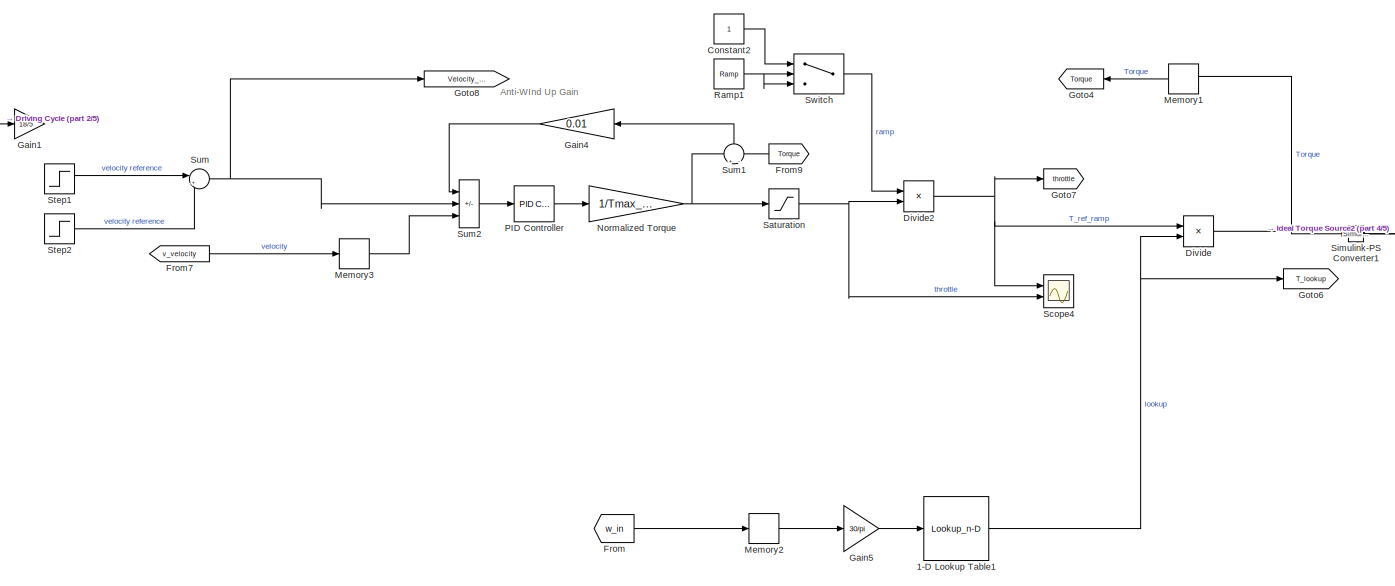
[diagram: root canvas - part 1/5, top left region]
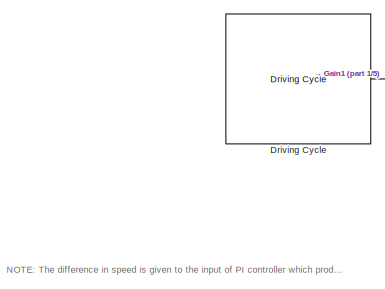
[diagram: root canvas - part 2/5, top left region]
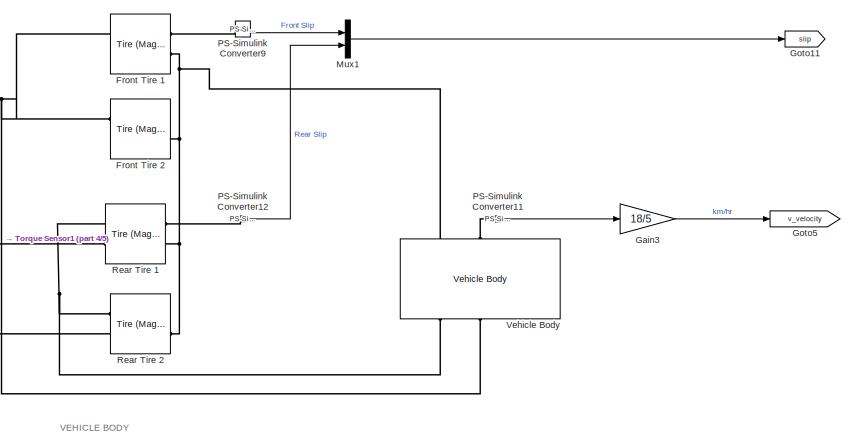
[diagram: root canvas - part 3/5, middle right region]
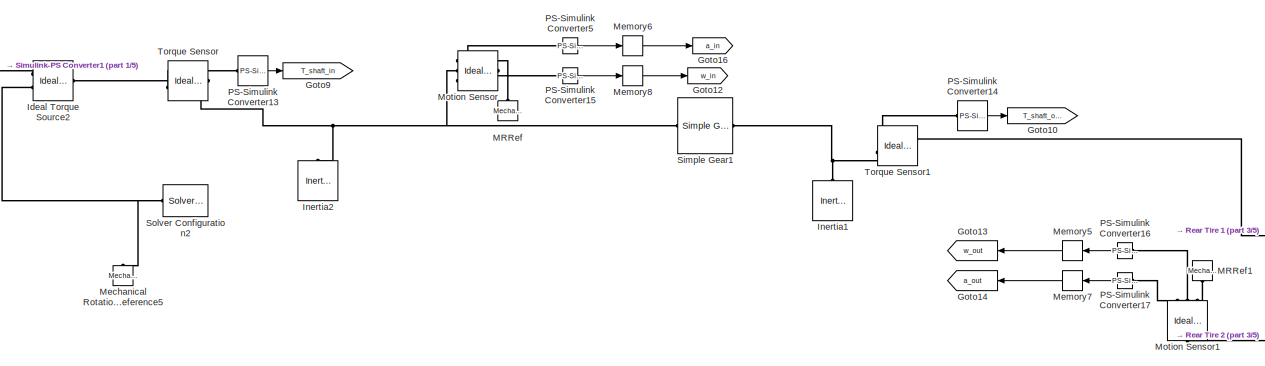
[diagram: root canvas - part 4/5, top center region]
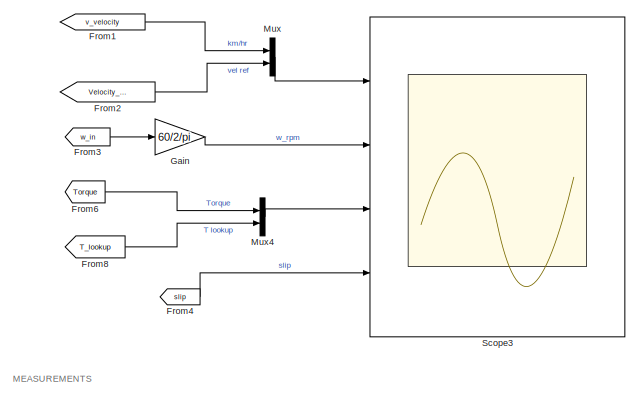
[diagram: root canvas - part 5/5, bottom center region]
MODEL slx_215099330c0b
KIND model
CONFIG AbsTol = auto
CONFIG EnableMultiTasking = off
CONFIG FixedStep = auto
CONFIG MaxStep = auto
CONFIG MinStep = auto
CONFIG RelTol = 1e-3
CONFIG SampleTimeConstraint = Unconstrained
CONFIG SolverName = VariableStepAuto
CONFIG StartTime = 0.0
CONFIG StopTime = 30
BLOCK [Reference]  Rear Tire 1  REF=sdl_lib/Tires & Vehicles/Tire (Magic Formula)
  Ports = [0, 0, 0, 0, 0, 2, 2]
  SourceBlock = sdl_lib/Tires & Vehicles/Tire (Magic Formula)
  SourceProductBaseCode = LD
  SourceType = Tire (Magic Formula)
BLOCK [Saturate]  Saturation
  LowerLimit = -1
  UpperLimit = 1
BLOCK [Lookup_n-D] 1-D Lookup Table1
  BreakpointsForDimension1 = w
  InputPortMap = u0
  InternalRulePriority = Speed
  NumberOfTableDimensions = 1
  Ports = [1, 1]
  RndMeth = Simplest
  Table = T
BLOCK [Constant] Constant2
BLOCK [Product] Divide
  Inputs = **
  Ports = [2, 1]
BLOCK [Product] Divide2
  Inputs = **
  Ports = [2, 1]
BLOCK [Reference] Driving Cycle  REF=drivingcycle_lib/Driving Cycle
  Ports = [0, 3]
  SourceBlock = drivingcycle_lib/Driving Cycle
  SourceProductName = Driving Cycle Blockset
  SourceType = Driving Cycle
BLOCK [From] From
  GotoTag = w_in
BLOCK [From] From1
  GotoTag = v_velocity
  TagVisibility = global
BLOCK [From] From2
  GotoTag = Velocity_ref
  NameLocation = top
  TagVisibility = global
BLOCK [From] From3
  GotoTag = w_in
BLOCK [From] From4
  GotoTag = slip
  TagVisibility = global
BLOCK [From] From6
  GotoTag = Torque
  TagVisibility = global
BLOCK [From] From7
  GotoTag = v_velocity
  TagVisibility = global
BLOCK [From] From8
  GotoTag = T_lookup
BLOCK [From] From9
  GotoTag = Torque
  NameLocation = top
  TagVisibility = global
BLOCK [Reference] Front Tire 1  REF=sdl_lib/Tires & Vehicles/Tire (Magic Formula)
  Ports = [0, 0, 0, 0, 0, 2, 2]
  SourceBlock = sdl_lib/Tires & Vehicles/Tire (Magic Formula)
  SourceProductBaseCode = LD
  SourceType = Tire (Magic Formula)
BLOCK [Reference] Front Tire 2  REF=sdl_lib/Tires & Vehicles/Tire (Magic Formula)
  Ports = [0, 0, 0, 0, 0, 2, 2]
  SourceBlock = sdl_lib/Tires & Vehicles/Tire (Magic Formula)
  SourceProductBaseCode = LD
  SourceType = Tire (Magic Formula)
BLOCK [Gain] Gain
  Gain = 60/2/pi
BLOCK [Gain] Gain1
  Gain = 18/5
BLOCK [Gain] Gain3
  Gain = 18/5
BLOCK [Gain] Gain4
  Gain = 0.01
  NameLocation = top
BLOCK [Gain] Gain5
  Gain = 30/pi
BLOCK [Goto] Goto10
  GotoTag = T_shaft_out
  TagVisibility = global
BLOCK [Goto] Goto11
  GotoTag = slip
  TagVisibility = global
BLOCK [Goto] Goto12
  GotoTag = w_in
BLOCK [Goto] Goto13
  GotoTag = w_out
  NameLocation = top
BLOCK [Goto] Goto14
  GotoTag = a_out
  NameLocation = top
BLOCK [Goto] Goto16
  GotoTag = a_in
BLOCK [Goto] Goto4
  GotoTag = Torque
  NameLocation = top
  TagVisibility = global
BLOCK [Goto] Goto5
  GotoTag = v_velocity
  TagVisibility = global
BLOCK [Goto] Goto6
  GotoTag = T_lookup
BLOCK [Goto] Goto7
  GotoTag = throttle
  TagVisibility = global
BLOCK [Goto] Goto8
  GotoTag = Velocity_ref
  TagVisibility = global
BLOCK [Goto] Goto9
  GotoTag = T_shaft_in
  TagVisibility = global
BLOCK [Reference] Ideal Torque Source2  REF=fl_lib/Mechanical/Mechanical Sources/Ideal Torque Source
  Ports = [0, 0, 0, 0, 0, 1, 2]
  SourceBlock = fl_lib/Mechanical/Mechanical Sources/Ideal Torque Source
  SourceProductBaseCode = SS
  SourceType = Ideal Torque Source
BLOCK [Reference] Inertia1  REF=fl_lib/Mechanical/Rotational Elements/Inertia
  NameLocation = right
  Ports = [0, 0, 0, 0, 0, 1]
  SourceBlock = fl_lib/Mechanical/Rotational Elements/Inertia
  SourceProductBaseCode = SS
  SourceType = Inertia
BLOCK [Reference] Inertia2  REF=fl_lib/Mechanical/Rotational Elements/Inertia
  NameLocation = right
  Ports = [0, 0, 0, 0, 0, 1]
  SourceBlock = fl_lib/Mechanical/Rotational Elements/Inertia
  SourceProductBaseCode = SS
  SourceType = Inertia
BLOCK [Reference] MRRef  REF=fl_lib/Mechanical/Rotational Elements/Mechanical
Rotational Reference
  NameLocation = left
  Ports = [0, 0, 0, 0, 0, 1]
  SourceBlock = fl_lib/Mechanical/Rotational Elements/Mechanical\nRotational Reference
  SourceProductName = Foundation Library
  SourceType = Mechanical\nRotational Reference
BLOCK [Reference] MRRef1  REF=fl_lib/Mechanical/Rotational Elements/Mechanical
Rotational Reference
  NameLocation = right
  Ports = [0, 0, 0, 0, 0, 1]
  SourceBlock = fl_lib/Mechanical/Rotational Elements/Mechanical\nRotational Reference
  SourceProductName = Foundation Library
  SourceType = Mechanical\nRotational Reference
BLOCK [Reference] Mechanical Rotational Reference5  REF=fl_lib/Mechanical/Rotational Elements/Mechanical
Rotational Reference
  NameLocation = right
  Ports = [0, 0, 0, 0, 0, 1]
  SourceBlock = fl_lib/Mechanical/Rotational Elements/Mechanical\nRotational Reference
  SourceProductBaseCode = SS
  SourceType = Mechanical\nRotational Reference
BLOCK [Memory] Memory1
  NameLocation = top
BLOCK [Memory] Memory2
BLOCK [Memory] Memory3
BLOCK [Memory] Memory5
  NameLocation = top
BLOCK [Memory] Memory6
BLOCK [Memory] Memory7
  NameLocation = top
BLOCK [Memory] Memory8
BLOCK [Reference] Motion Sensor  REF=fl_lib/Mechanical/Mechanical Sensors/Ideal Rotational
Motion Sensor
  NameLocation = top
  Ports = [0, 0, 0, 0, 0, 1, 3]
  SourceBlock = fl_lib/Mechanical/Mechanical Sensors/Ideal Rotational\nMotion Sensor
  SourceProductName = Foundation Library
  SourceType = Ideal Rotational\nMotion Sensor
BLOCK [Reference] Motion Sensor1  REF=fl_lib/Mechanical/Mechanical Sensors/Ideal Rotational
Motion Sensor
  NameLocation = left
  Ports = [0, 0, 0, 0, 0, 1, 3]
  SourceBlock = fl_lib/Mechanical/Mechanical Sensors/Ideal Rotational\nMotion Sensor
  SourceProductName = Foundation Library
  SourceType = Ideal Rotational\nMotion Sensor
BLOCK [Mux] Mux
  DisplayOption = bar
  Inputs = 2
  Ports = [2, 1]
BLOCK [Mux] Mux1
  DisplayOption = bar
  Inputs = 2
  Ports = [2, 1]
BLOCK [Mux] Mux4
  DisplayOption = bar
  Inputs = 2
  Ports = [2, 1]
BLOCK [Gain] Normalized Torque
  Gain = 1/Tmax_mach
BLOCK [Reference] PID Controller  REF=slpidlib/PID Controller
  Ports = [1, 1]
  SourceBlock = slpidlib/PID Controller
  SourceProductBaseCode = SL
  SourceType = PID 1dof
BLOCK [Reference] PS-Simulink Converter11  REF=nesl_utility/PS-Simulink
Converter
  Ports = [0, 1, 0, 0, 0, 1]
  SourceBlock = nesl_utility/PS-Simulink\nConverter
  SourceProductBaseCode = SS
  SourceType = PS-Simulink\nConverter
BLOCK [Reference] PS-Simulink Converter12  REF=nesl_utility/PS-Simulink
Converter
  Ports = [0, 1, 0, 0, 0, 1]
  SourceBlock = nesl_utility/PS-Simulink\nConverter
  SourceProductBaseCode = SS
  SourceType = PS-Simulink\nConverter
BLOCK [Reference] PS-Simulink Converter13  REF=nesl_utility/PS-Simulink
Converter
  Ports = [0, 1, 0, 0, 0, 1]
  SourceBlock = nesl_utility/PS-Simulink\nConverter
  SourceProductName = Utilities
  SourceType = PS-Simulink\nConverter
BLOCK [Reference] PS-Simulink Converter14  REF=nesl_utility/PS-Simulink
Converter
  Ports = [0, 1, 0, 0, 0, 1]
  SourceBlock = nesl_utility/PS-Simulink\nConverter
  SourceProductName = Utilities
  SourceType = PS-Simulink\nConverter
BLOCK [Reference] PS-Simulink Converter15  REF=nesl_utility/PS-Simulink
Converter
  Ports = [0, 1, 0, 0, 0, 1]
  SourceBlock = nesl_utility/PS-Simulink\nConverter
  SourceProductBaseCode = PW,SS
  SourceType = PS-Simulink\nConverter
BLOCK [Reference] PS-Simulink Converter16  REF=nesl_utility/PS-Simulink
Converter
  NameLocation = top
  Ports = [0, 1, 0, 0, 0, 1]
  SourceBlock = nesl_utility/PS-Simulink\nConverter
  SourceProductBaseCode = PW,SS
  SourceType = PS-Simulink\nConverter
BLOCK [Reference] PS-Simulink Converter17  REF=nesl_utility/PS-Simulink
Converter
  NameLocation = top
  Ports = [0, 1, 0, 0, 0, 1]
  SourceBlock = nesl_utility/PS-Simulink\nConverter
  SourceProductBaseCode = PW,SS
  SourceType = PS-Simulink\nConverter
BLOCK [Reference] PS-Simulink Converter5  REF=nesl_utility/PS-Simulink
Converter
  Ports = [0, 1, 0, 0, 0, 1]
  SourceBlock = nesl_utility/PS-Simulink\nConverter
  SourceProductBaseCode = PW,SS
  SourceType = PS-Simulink\nConverter
BLOCK [Reference] PS-Simulink Converter9  REF=nesl_utility/PS-Simulink
Converter
  Ports = [0, 1, 0, 0, 0, 1]
  SourceBlock = nesl_utility/PS-Simulink\nConverter
  SourceProductBaseCode = SS
  SourceType = PS-Simulink\nConverter
BLOCK [Reference] Ramp1  REF=simulink/Sources/Ramp
  Ports = [0, 1]
  SourceBlock = simulink/Sources/Ramp
  SourceProductBaseCode = SL
  SourceType = Ramp
BLOCK [Reference] Rear Tire 2  REF=sdl_lib/Tires & Vehicles/Tire (Magic Formula)
  Ports = [0, 0, 0, 0, 0, 2, 2]
  SourceBlock = sdl_lib/Tires & Vehicles/Tire (Magic Formula)
  SourceProductBaseCode = LD
  SourceType = Tire (Magic Formula)
BLOCK [Scope] Scope3
  Floating = off
  NumInputPorts = 4
  Ports = [4]
  ScopeSpecificationString = Simulink.scopes.TimeScopeBlockCfg('CurrentConfiguration', extmgr.ConfigurationSet(extmgr.Configuration('Core','General UI',true,'FigureColor',[1 1 1]),extmgr.Configuration('Core','Source UI',true),extmgr.Configuration('Sources','WiredSimulink',true,'DataLoggingVariableName','ScopeData1'),extmgr.Configuration('Visuals','Time Domain',true,'SerializedDisplays',{struct('MinYLimReal','-18.75','MaxYLimR...<+4429ch>
BLOCK [Scope] Scope4
  Floating = off
  NumInputPorts = 2
  Ports = [2]
  ScopeSpecificationString = Simulink.scopes.TimeScopeBlockCfg('CurrentConfiguration', extmgr.ConfigurationSet(extmgr.Configuration('Core','General UI',true),extmgr.Configuration('Core','Source UI',true),extmgr.Configuration('Sources','WiredSimulink',true,'DataLoggingVariableName','ScopeData1'),extmgr.Configuration('Visuals','Time Domain',true,'SerializedDisplays',{struct('MinYLimReal','-0.125','MaxYLimReal','1.125','YLabelRe...<+1366ch>
BLOCK [Reference] Simple Gear1  REF=sdl_lib/Gears/Simple Gear
  Ports = [0, 0, 0, 0, 0, 1, 1]
  SourceBlock = sdl_lib/Gears/Simple Gear
  SourceProductBaseCode = LD
  SourceType = Simple Gear
BLOCK [Reference] Simulink-PS Converter1  REF=nesl_utility/Simulink-PS
Converter
  Ports = [1, 0, 0, 0, 0, 0, 1]
  SourceBlock = nesl_utility/Simulink-PS\nConverter
  SourceProductBaseCode = SS
  SourceType = Simulink-PS\nConverter
BLOCK [Reference] Solver Configuration2  REF=nesl_utility/Solver
Configuration
  NameLocation = top
  Ports = [0, 0, 0, 0, 0, 0, 1]
  SourceBlock = nesl_utility/Solver\nConfiguration
  SourceProductBaseCode = SS
  SourceType = Solver\nConfiguration
BLOCK [Step] Step1
  After = 100
  SampleTime = 0
  Time = 0
BLOCK [Step] Step2
  After = 50
  SampleTime = 0
  Time = 10
BLOCK [Sum] Sum
  Inputs = |++
  Ports = [2, 1]
BLOCK [Sum] Sum1
  Inputs = +|-
  NameLocation = right
  Ports = [2, 1]
BLOCK [Sum] Sum2
  IconShape = rectangular
  Inputs = |-+-
  Ports = [3, 1]
BLOCK [Switch] Switch
  Criteria = u2 > Threshold
  InputSameDT = off
  SaturateOnIntegerOverflow = off
  Threshold = 1
BLOCK [Reference] Torque Sensor  REF=fl_lib/Mechanical/Mechanical Sensors/Ideal Torque Sensor
  Ports = [0, 0, 0, 0, 0, 1, 2]
  SourceBlock = fl_lib/Mechanical/Mechanical Sensors/Ideal Torque Sensor
  SourceProductName = Foundation Library
  SourceType = Ideal Torque Sensor
BLOCK [Reference] Torque Sensor1  REF=fl_lib/Mechanical/Mechanical Sensors/Ideal Torque Sensor
  Ports = [0, 0, 0, 0, 0, 1, 2]
  SourceBlock = fl_lib/Mechanical/Mechanical Sensors/Ideal Torque Sensor
  SourceProductName = Foundation Library
  SourceType = Ideal Torque Sensor
BLOCK [Reference] Vehicle Body   REF=sdl_lib/Tires & Vehicles/Vehicle Body
  NameLocation = right
  Ports = [0, 0, 0, 0, 0, 3, 3]
  SourceBlock = sdl_lib/Tires & Vehicles/Vehicle Body
  SourceProductBaseCode = LD
  SourceType = Vehicle Body
ANNOTATION (root): NOTE : The difference in speed is given to the input of PI controller which produces the torque output which is then normalized by dividing it with the maximum machine torque. This gives the throttle input which is then multiplied with a ramp to get a smooth acceleration. Antiwindup setup is used to prevent the PI controller from the integrator windup.
ANNOTATION (root): MEASUREMENTS
ANNOTATION (root): VEHICLE BODY
ANNOTATION (root): Anti-WInd Up Gain
NET  Saturation:1 -> Divide2:2, Scope4:2
NET 1-D Lookup Table1:1 -> Divide:2, Goto6:1
LINE Constant2:1 -> Switch:1
NET Divide2:1 -> Divide:1, Goto7:1, Scope4:1
NET Divide:1 -> Memory1:1, Simulink-PS Converter1:1
LINE Driving Cycle:2 -> Gain1:1
LINE From1:1 -> Mux:1
LINE From2:1 -> Mux:2
LINE From3:1 -> Gain:1
LINE From4:1 -> Scope3:4
LINE From6:1 -> Mux4:1
LINE From7:1 -> Memory3:1
LINE From8:1 -> Mux4:2
LINE From9:1 -> Sum1:2
LINE From:1 -> Memory2:1
LINE Gain3:1 -> Goto5:1
LINE Gain4:1 -> Sum2:1
LINE Gain5:1 -> 1-D Lookup Table1:1
LINE Gain:1 -> Scope3:2
LINE Memory1:1 -> Goto4:1
LINE Memory2:1 -> Gain5:1
LINE Memory3:1 -> Sum2:3
LINE Memory5:1 -> Goto13:1
LINE Memory6:1 -> Goto16:1
LINE Memory7:1 -> Goto14:1
LINE Memory8:1 -> Goto12:1
LINE Mux1:1 -> Goto11:1
LINE Mux4:1 -> Scope3:3
LINE Mux:1 -> Scope3:1
NET Normalized Torque:1 ->  Saturation:1, Sum1:1
LINE PID Controller:1 -> Normalized Torque:1
LINE PS-Simulink Converter11:1 -> Gain3:1
LINE PS-Simulink Converter12:1 -> Mux1:2
LINE PS-Simulink Converter13:1 -> Goto9:1
LINE PS-Simulink Converter14:1 -> Goto10:1
LINE PS-Simulink Converter15:1 -> Memory8:1
LINE PS-Simulink Converter16:1 -> Memory5:1
LINE PS-Simulink Converter17:1 -> Memory7:1
LINE PS-Simulink Converter5:1 -> Memory6:1
LINE PS-Simulink Converter9:1 -> Mux1:1
NET Ramp1:1 -> Switch:2, Switch:3
LINE Step1:1 -> Sum:1
LINE Step2:1 -> Sum:2
LINE Sum1:1 -> Gain4:1
LINE Sum2:1 -> PID Controller:1
NET Sum:1 -> Goto8:1, Sum2:2
LINE Switch:1 -> Divide2:1
PNET net1:  Rear Tire 1:LConn1 -- Rear Tire 2:LConn1 -- Vehicle Body :RConn1
PNET net2:  Rear Tire 1:LConn2 -- Motion Sensor1:LConn1 -- Rear Tire 2:LConn2 -- Torque Sensor1:RConn1
PLINE  Rear Tire 1:RConn1 -- PS-Simulink Converter12:LConn1
PNET net3:  Rear Tire 1:RConn2 -- Front Tire 1:RConn2 -- Front Tire 2:RConn2 -- Rear Tire 2:RConn2 -- Vehicle Body :LConn1
PNET net4: Front Tire 1:LConn1 -- Front Tire 2:LConn1 -- Vehicle Body :RConn2
PLINE Front Tire 1:RConn1 -- PS-Simulink Converter9:LConn1
PLINE Ideal Torque Source2:LConn1 -- Torque Sensor:LConn1
PLINE Ideal Torque Source2:RConn1 -- Simulink-PS Converter1:RConn1
PNET net5: Ideal Torque Source2:RConn2 -- Mechanical Rotational Reference5:LConn1 -- Solver Configuration2:RConn1
PNET net6: Inertia1:LConn1 -- Simple Gear1:RConn1 -- Torque Sensor1:LConn1
PNET net7: Inertia2:LConn1 -- Motion Sensor:LConn1 -- Simple Gear1:LConn1 -- Torque Sensor:RConn1
PLINE MRRef1:LConn1 -- Motion Sensor1:RConn1
PLINE MRRef:LConn1 -- Motion Sensor:RConn1
PLINE Motion Sensor1:RConn2 -- PS-Simulink Converter16:LConn1
PLINE Motion Sensor1:RConn3 -- PS-Simulink Converter17:LConn1
PLINE Motion Sensor:RConn2 -- PS-Simulink Converter15:LConn1
PLINE Motion Sensor:RConn3 -- PS-Simulink Converter5:LConn1
PLINE PS-Simulink Converter11:LConn1 -- Vehicle Body :LConn2
PLINE PS-Simulink Converter13:LConn1 -- Torque Sensor:RConn2
PLINE PS-Simulink Converter14:LConn1 -- Torque Sensor1:RConn2
note: NET lines group one-source signal fan-out (src -> all destinations, sorted); 1:1 wires keep LINE; PNET lines group multi-terminal physical nets as a canonical sorted terminal list (undirected conserving connections); 2-terminal nets keep the pairwise PLINE form
